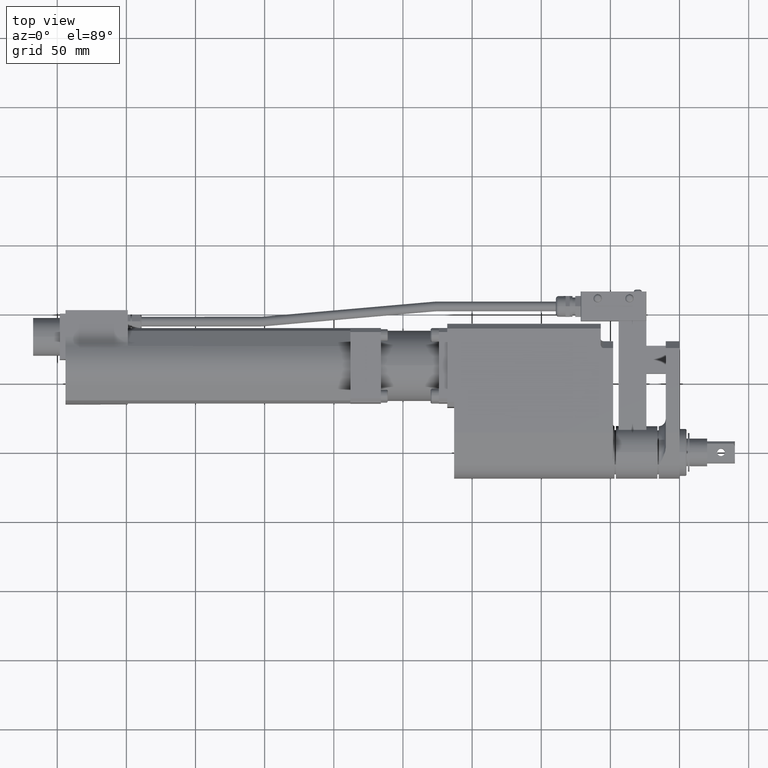
[diagram: clean part render]
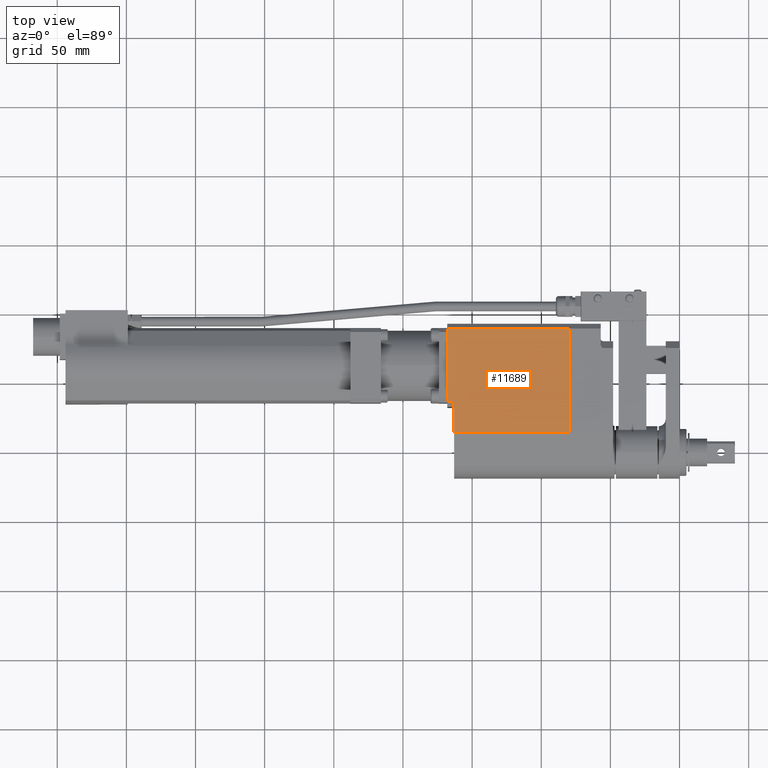
[diagram: same view with one face highlighted and labeled with its STEP entity id]
A machine part, top view. The second image highlights one B-rep face of the part: STEP entity #11689.
In plain terms, the highlighted planar face has unit normal (0, 0, -1).
Its self-contained STEP definition (entity closure, byte-faithful):
#496 = DIRECTION ( 'NONE',  ( -0.0000000000000000000, 1.000000000000000000, -2.312964634635743000E-016 ) ) ;
#512 = DIRECTION ( 'NONE',  ( 1.000000000000000000, 0.0000000000000000000, 0.0000000000000000000 ) ) ;
#574 = VERTEX_POINT ( 'NONE', #12961 ) ;
#687 = CARTESIAN_POINT ( 'NONE',  ( -168.0000000000000000, 36.10000000000000100, 30.00000000000001800 ) ) ;
#755 = EDGE_CURVE ( 'NONE', #13271, #6435, #1071, .T. ) ;
#1071 = LINE ( 'NONE', #13123, #5269 ) ;
#1072 = CARTESIAN_POINT ( 'NONE',  ( -168.0000000000000000, 89.09999999999996600, 29.99999999999999300 ) ) ;
#1374 = AXIS2_PLACEMENT_3D ( 'NONE', #7846, #6443, #5066 ) ;
#1696 = DIRECTION ( 'NONE',  ( -1.000000000000000000, 0.0000000000000000000, 0.0000000000000000000 ) ) ;
#1721 = VECTOR ( 'NONE', #512, 1000.000000000000000 ) ;
#1880 = CARTESIAN_POINT ( 'NONE',  ( -168.0000000000000000, 92.59999999999999400, 29.99999999999999300 ) ) ;
#1890 = CARTESIAN_POINT ( 'NONE',  ( -163.0000000000000000, 36.09999999999996600, 29.99999999999999600 ) ) ;
#2021 = VECTOR ( 'NONE', #496, 1000.000000000000000 ) ;
#2101 = ORIENTED_EDGE ( 'NONE', *, *, #755, .F. ) ;
#2361 = EDGE_LOOP ( 'NONE', ( #11744, #8223, #2101, #12758, #3009, #6803 ) ) ;
#2419 = FACE_OUTER_BOUND ( 'NONE', #2361, .T. ) ;
#3009 = ORIENTED_EDGE ( 'NONE', *, *, #4637, .T. ) ;
#3072 = CARTESIAN_POINT ( 'NONE',  ( -163.0000000000000000, 89.09999999999995200, 29.99999999999999600 ) ) ;
#3264 = LINE ( 'NONE', #1890, #1721 ) ;
#4091 = CARTESIAN_POINT ( 'NONE',  ( -163.0000000000000000, 36.09999999999996600, 29.99999999999999600 ) ) ;
#4428 = LINE ( 'NONE', #3072, #9522 ) ;
#4495 = DIRECTION ( 'NONE',  ( 0.0000000000000000000, 1.000000000000000000, 0.0000000000000000000 ) ) ;
#4637 = EDGE_CURVE ( 'NONE', #8826, #574, #8640, .T. ) ;
#5066 = DIRECTION ( 'NONE',  ( -1.000000000000000000, 0.0000000000000000000, -0.0000000000000000000 ) ) ;
#5269 = VECTOR ( 'NONE', #11755, 1000.000000000000000 ) ;
#5718 = EDGE_CURVE ( 'NONE', #13383, #6435, #3264, .T. ) ;
#5761 = CARTESIAN_POINT ( 'NONE',  ( -163.0000000000000000, 13.96152422706587600, 29.99999999999999600 ) ) ;
#5876 = CARTESIAN_POINT ( 'NONE',  ( -80.00000000000000000, 13.96152422706587600, 29.99999999999999600 ) ) ;
#5907 = VERTEX_POINT ( 'NONE', #1072 ) ;
#6016 = VECTOR ( 'NONE', #4495, 1000.000000000000000 ) ;
#6435 = VERTEX_POINT ( 'NONE', #4091 ) ;
#6443 = DIRECTION ( 'NONE',  ( 0.0000000000000000000, 0.0000000000000000000, -1.000000000000000000 ) ) ;
#6803 = ORIENTED_EDGE ( 'NONE', *, *, #11429, .T. ) ;
#7144 = CARTESIAN_POINT ( 'NONE',  ( -80.00000000000000000, 13.96152422706587600, 29.99999999999999600 ) ) ;
#7203 = DIRECTION ( 'NONE',  ( 1.000000000000000000, -0.0000000000000000000, -0.0000000000000000000 ) ) ;
#7381 = LINE ( 'NONE', #1880, #2021 ) ;
#7846 = CARTESIAN_POINT ( 'NONE',  ( -163.0000000000000000, 13.96152422706587600, 29.99999999999999600 ) ) ;
#8223 = ORIENTED_EDGE ( 'NONE', *, *, #5718, .T. ) ;
#8581 = CARTESIAN_POINT ( 'NONE',  ( -163.0000000000000000, 13.96152422706587600, 29.99999999999999600 ) ) ;
#8640 = LINE ( 'NONE', #5876, #6016 ) ;
#8671 = EDGE_CURVE ( 'NONE', #13383, #5907, #7381, .T. ) ;
#8826 = VERTEX_POINT ( 'NONE', #7144 ) ;
#9190 = EDGE_CURVE ( 'NONE', #13271, #8826, #9966, .T. ) ;
#9219 = PLANE ( 'NONE',  #1374 ) ;
#9522 = VECTOR ( 'NONE', #1696, 1000.000000000000000 ) ;
#9966 = LINE ( 'NONE', #8581, #10869 ) ;
#10869 = VECTOR ( 'NONE', #7203, 1000.000000000000000 ) ;
#11429 = EDGE_CURVE ( 'NONE', #574, #5907, #4428, .T. ) ;
#11689 = ADVANCED_FACE ( 'NONE', ( #2419 ), #9219, .F. ) ;
#11744 = ORIENTED_EDGE ( 'NONE', *, *, #8671, .F. ) ;
#11755 = DIRECTION ( 'NONE',  ( 0.0000000000000000000, 1.000000000000000000, 0.0000000000000000000 ) ) ;
#12758 = ORIENTED_EDGE ( 'NONE', *, *, #9190, .T. ) ;
#12961 = CARTESIAN_POINT ( 'NONE',  ( -80.00000000000000000, 89.09999999999995200, 29.99999999999999600 ) ) ;
#13123 = CARTESIAN_POINT ( 'NONE',  ( -163.0000000000000000, 13.96152422706587600, 29.99999999999999600 ) ) ;
#13271 = VERTEX_POINT ( 'NONE', #5761 ) ;
#13383 = VERTEX_POINT ( 'NONE', #687 ) ;